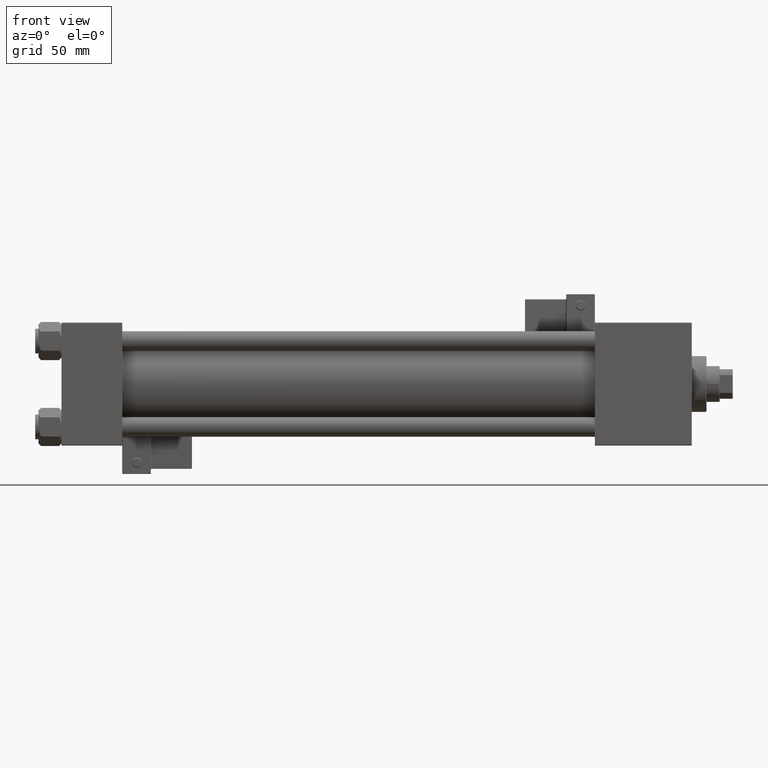
[diagram: clean part render]
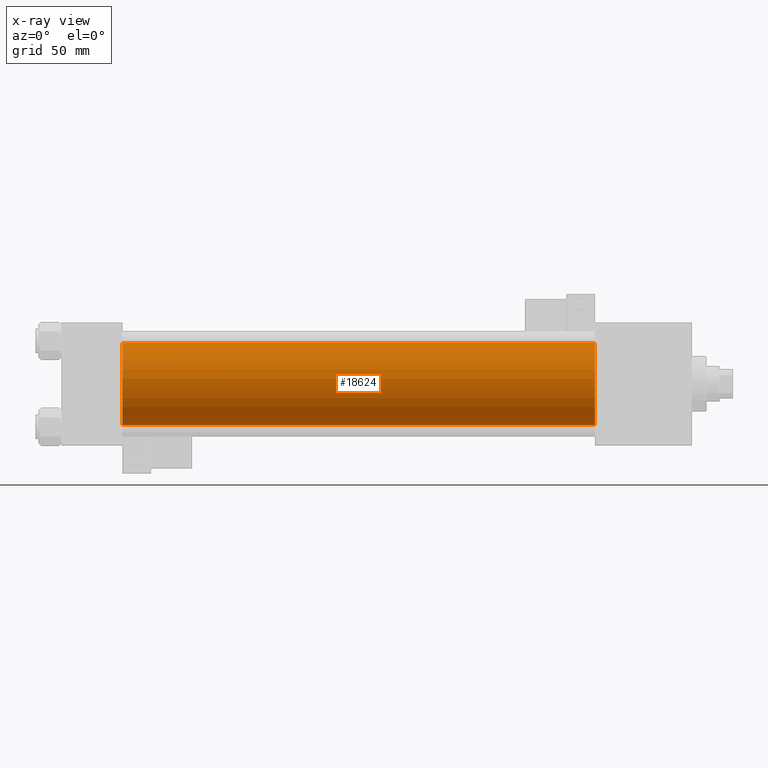
[diagram: x-ray — body ghosted, one internal face saturated and labeled with its STEP entity id]
A machine part, front view, then the same camera in x-ray: the body is ghosted and one INTERNAL B-rep face — a face not visible from any outside direction — is saturated and labeled: STEP entity #18624.
In plain terms, the highlighted cylindrical surface (partial cylindrical patch) has radius 25 mm, axis along (-1, -0, -0).
Its self-contained STEP definition (entity closure, byte-faithful):
#142 = EDGE_LOOP ( 'NONE', ( #12383, #25058, #8192, #3808 ) ) ;
#1295 = AXIS2_PLACEMENT_3D ( 'NONE', #17909, #14189, #46614 ) ;
#2504 = CARTESIAN_POINT ( 'NONE',  ( 324.9999999999999432, -2.602085213965210642E-15, 0.000000000000000000 ) ) ;
#3401 = EDGE_CURVE ( 'NONE', #51058, #5666, #36313, .T. ) ;
#3808 = ORIENTED_EDGE ( 'NONE', *, *, #28367, .F. ) ;
#5666 = VERTEX_POINT ( 'NONE', #50507 ) ;
#7005 = FACE_OUTER_BOUND ( 'NONE', #142, .T. ) ;
#8192 = ORIENTED_EDGE ( 'NONE', *, *, #40485, .F. ) ;
#12383 = ORIENTED_EDGE ( 'NONE', *, *, #29643, .T. ) ;
#14189 = DIRECTION ( 'NONE',  ( 1.000000000000000000, 0.000000000000000000, 0.000000000000000000 ) ) ;
#17174 = CARTESIAN_POINT ( 'NONE',  ( 324.9999999999999432, 4.595317839031724996E-16, -25.00000000000000000 ) ) ;
#17428 = DIRECTION ( 'NONE',  ( 1.000000000000000000, 0.000000000000000000, 0.000000000000000000 ) ) ;
#17909 = CARTESIAN_POINT ( 'NONE',  ( 324.9999999999999432, -2.602085213965210642E-15, 0.000000000000000000 ) ) ;
#18624 = ADVANCED_FACE ( 'NONE', ( #7005 ), #42617, .F. ) ;
#18965 = CARTESIAN_POINT ( 'NONE',  ( 324.9999999999999432, -2.602085213965210642E-15, 25.00000000000000000 ) ) ;
#20652 = VERTEX_POINT ( 'NONE', #21018 ) ;
#21018 = CARTESIAN_POINT ( 'NONE',  ( 324.9999999999999432, -2.602085213965210642E-15, 25.00000000000000000 ) ) ;
#25058 = ORIENTED_EDGE ( 'NONE', *, *, #3401, .T. ) ;
#25654 = DIRECTION ( 'NONE',  ( 0.000000000000000000, 0.000000000000000000, -1.000000000000000000 ) ) ;
#27277 = DIRECTION ( 'NONE',  ( -1.000000000000000000, -0.000000000000000000, -0.000000000000000000 ) ) ;
#27950 = AXIS2_PLACEMENT_3D ( 'NONE', #49596, #17428, #25654 ) ;
#28367 = EDGE_CURVE ( 'NONE', #20652, #40415, #38901, .T. ) ;
#29643 = EDGE_CURVE ( 'NONE', #20652, #51058, #36938, .T. ) ;
#29660 = DIRECTION ( 'NONE',  ( -1.000000000000000000, -0.000000000000000000, -0.000000000000000000 ) ) ;
#29895 = AXIS2_PLACEMENT_3D ( 'NONE', #2504, #38372, #34109 ) ;
#31528 = CARTESIAN_POINT ( 'NONE',  ( 324.9999999999999432, 4.595317839031724996E-16, -25.00000000000000000 ) ) ;
#34109 = DIRECTION ( 'NONE',  ( 0.000000000000000000, 0.000000000000000000, 1.000000000000000000 ) ) ;
#34299 = VECTOR ( 'NONE', #27277, 1000.000000000000000 ) ;
#36068 = VECTOR ( 'NONE', #29660, 1000.000000000000000 ) ;
#36313 = LINE ( 'NONE', #31528, #34299 ) ;
#36938 = CIRCLE ( 'NONE', #1295, 25.00000000000000000 ) ;
#38372 = DIRECTION ( 'NONE',  ( -1.000000000000000000, -0.000000000000000000, -0.000000000000000000 ) ) ;
#38901 = LINE ( 'NONE', #18965, #36068 ) ;
#40415 = VERTEX_POINT ( 'NONE', #50101 ) ;
#40485 = EDGE_CURVE ( 'NONE', #40415, #5666, #45761, .T. ) ;
#42617 = CYLINDRICAL_SURFACE ( 'NONE', #29895, 25.00000000000000000 ) ;
#45761 = CIRCLE ( 'NONE', #27950, 25.00000000000000000 ) ;
#46614 = DIRECTION ( 'NONE',  ( 0.000000000000000000, 0.000000000000000000, -1.000000000000000000 ) ) ;
#49596 = CARTESIAN_POINT ( 'NONE',  ( 37.00000000000000000, -2.602085213965210642E-15, 0.000000000000000000 ) ) ;
#50101 = CARTESIAN_POINT ( 'NONE',  ( 37.00000000000000000, -2.602085213965210642E-15, 25.00000000000000000 ) ) ;
#50507 = CARTESIAN_POINT ( 'NONE',  ( 37.00000000000000000, 4.595317839031724996E-16, -25.00000000000000000 ) ) ;
#51058 = VERTEX_POINT ( 'NONE', #17174 ) ;